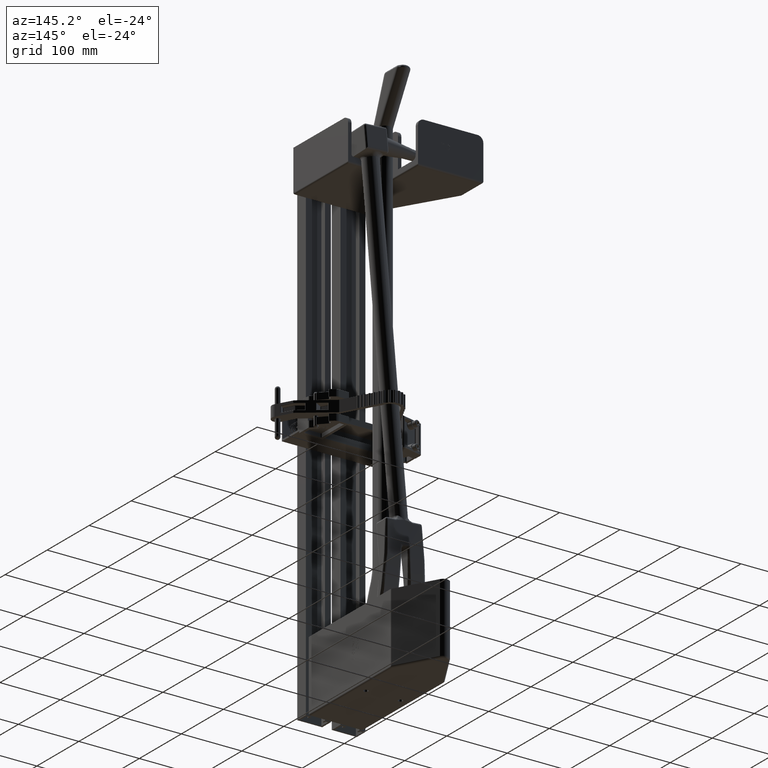
[diagram: clean part render]
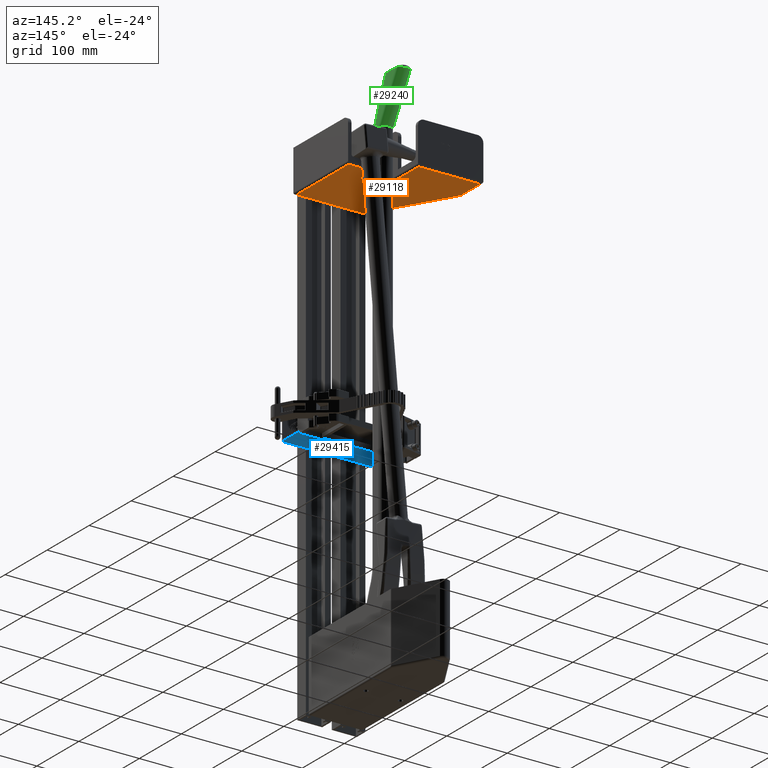
[diagram: same view with three faces highlighted in distinct colors, each labeled with its STEP entity id]
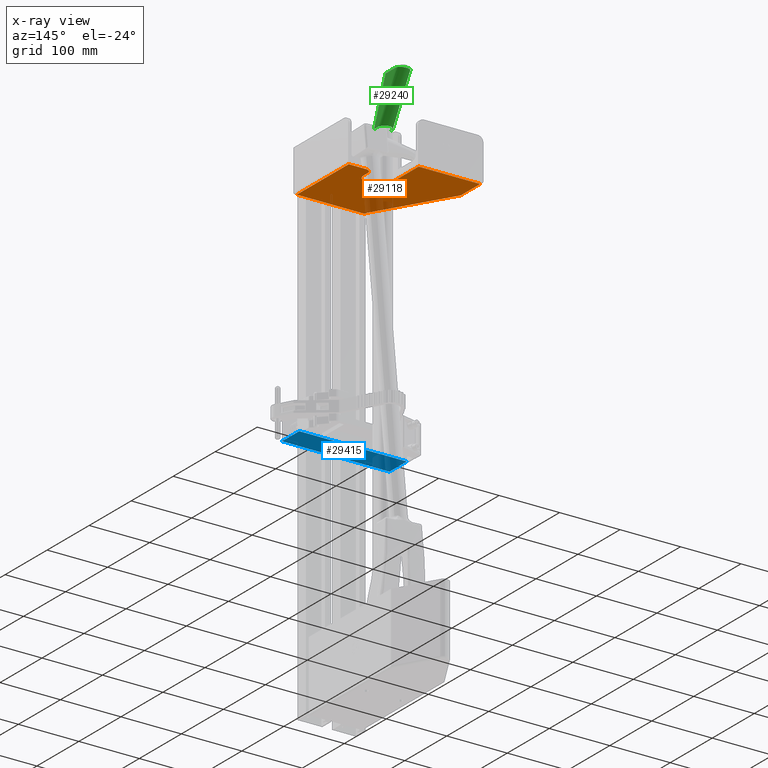
[diagram: x-ray of the same camera — body ghosted, the three highlighted faces saturated]
A machine part, auxiliary view with three faces highlighted in distinct colors.
The next image is the same camera in x-ray (body ghosted, the three faces saturated) — at least one of them is partly hidden behind the body in this view.
Their STEP definitions:

[orange] entity #29118 — the highlighted planar face has unit normal (0, 0, 1).
#10278 = AXIS2_PLACEMENT_3D ( 'NONE', #16723, #16744, #16745 ) ;
#10283 = AXIS2_PLACEMENT_3D ( 'NONE', #16720, #16724, #16725 ) ;
#10285 = AXIS2_PLACEMENT_3D ( 'NONE', #16716, #16729, #16730 ) ;
#14902 = LINE ( 'NONE', #16721, #14918 ) ;
#14909 = LINE ( 'NONE', #16708, #14910 ) ;
#14910 = VECTOR ( 'NONE', #16709, 39.37007874015748100 ) ;
#14913 = VECTOR ( 'NONE', #16727, 39.37007874015748100 ) ;
#14914 = LINE ( 'NONE', #16714, #14915 ) ;
#14915 = VECTOR ( 'NONE', #16715, 39.37007874015748100 ) ;
#14916 = LINE ( 'NONE', #16731, #14919 ) ;
#14917 = LINE ( 'NONE', #16726, #14913 ) ;
#14918 = VECTOR ( 'NONE', #16722, 39.37007874015748100 ) ;
#14919 = VECTOR ( 'NONE', #16732, 39.37007874015748100 ) ;
#14920 = CIRCLE ( 'NONE', #10283, 0.6250000000000000000 ) ;
#14922 = CIRCLE ( 'NONE', #10285, 0.3750000000000001100 ) ;
#14923 = LINE ( 'NONE', #16733, #14924 ) ;
#14924 = VECTOR ( 'NONE', #16734, 39.37007874015748100 ) ;
#14925 = LINE ( 'NONE', #16735, #14926 ) ;
#14926 = VECTOR ( 'NONE', #16736, 39.37007874015748100 ) ;
#14927 = LINE ( 'NONE', #16737, #14928 ) ;
#14928 = VECTOR ( 'NONE', #16738, 39.37007874015748100 ) ;
#14929 = LINE ( 'NONE', #16739, #14930 ) ;
#14930 = VECTOR ( 'NONE', #16740, 39.37007874015748100 ) ;
#14931 = LINE ( 'NONE', #16741, #14932 ) ;
#14932 = VECTOR ( 'NONE', #16742, 39.37007874015748100 ) ;
#14934 = CIRCLE ( 'NONE', #10278, 0.3749999999999999400 ) ;
#16708 = CARTESIAN_POINT ( 'NONE',  ( 0.7187500000000001100, 7.000000000000000000, 0.0000000000000000000 ) ) ;
#16709 = DIRECTION ( 'NONE',  ( -4.966996352116843800E-017, 1.000000000000000000, -0.0000000000000000000 ) ) ;
#16714 = CARTESIAN_POINT ( 'NONE',  ( 2.218750000000000000, 7.000000000000000000, 0.0000000000000000000 ) ) ;
#16715 = DIRECTION ( 'NONE',  ( 5.330435109588807600E-017, -1.000000000000000000, -0.0000000000000000000 ) ) ;
#16716 = CARTESIAN_POINT ( 'NONE',  ( 1.093750000000000000, 4.624999999999999100, 0.0000000000000000000 ) ) ;
#16720 = CARTESIAN_POINT ( 'NONE',  ( 0.09374999999999998600, 4.250000000000000000, 0.0000000000000000000 ) ) ;
#16721 = CARTESIAN_POINT ( 'NONE',  ( -2.343749999999992000, 4.999999999999999100, 0.0000000000000000000 ) ) ;
#16722 = DIRECTION ( 'NONE',  ( 1.000000000000000000, -0.0000000000000000000, -0.0000000000000000000 ) ) ;
#16723 = CARTESIAN_POINT ( 'NONE',  ( -0.6562499999999998900, 4.000000000000000000, 0.0000000000000000000 ) ) ;
#16724 = DIRECTION ( 'NONE',  ( 0.0000000000000000000, -0.0000000000000000000, 1.000000000000000000 ) ) ;
#16725 = DIRECTION ( 'NONE',  ( 1.000000000000000000, 0.0000000000000000000, 0.0000000000000000000 ) ) ;
#16726 = CARTESIAN_POINT ( 'NONE',  ( -2.343749999999992000, 3.625000000000000400, 0.0000000000000000000 ) ) ;
#16727 = DIRECTION ( 'NONE',  ( 1.000000000000000000, -0.0000000000000000000, -0.0000000000000000000 ) ) ;
#16729 = DIRECTION ( 'NONE',  ( -0.0000000000000000000, 0.0000000000000000000, -1.000000000000000000 ) ) ;
#16730 = DIRECTION ( 'NONE',  ( 1.000000000000000000, -1.456985596620940000E-015, 0.0000000000000000000 ) ) ;
#16731 = CARTESIAN_POINT ( 'NONE',  ( -2.343749999999992000, 0.1250000000000004400, 0.0000000000000000000 ) ) ;
#16732 = DIRECTION ( 'NONE',  ( -1.000000000000000000, -0.0000000000000000000, -0.0000000000000000000 ) ) ;
#16733 = CARTESIAN_POINT ( 'NONE',  ( -2.218749999999992500, 7.000000000000000000, 0.0000000000000000000 ) ) ;
#16734 = DIRECTION ( 'NONE',  ( 1.115039997413985000E-015, 1.000000000000000000, -0.0000000000000000000 ) ) ;
#16735 = CARTESIAN_POINT ( 'NONE',  ( -5.193033217995651500, 5.318235246461113300, 0.0000000000000000000 ) ) ;
#16736 = DIRECTION ( 'NONE',  ( -0.5083030259751671900, 0.8611782822299273200, -0.0000000000000000000 ) ) ;
#16737 = CARTESIAN_POINT ( 'NONE',  ( -5.031249999999999100, 7.000000000000000000, 0.0000000000000000000 ) ) ;
#16738 = DIRECTION ( 'NONE',  ( -0.0000000000000000000, 1.000000000000000000, -0.0000000000000000000 ) ) ;
#16739 = CARTESIAN_POINT ( 'NONE',  ( -2.343749999999992000, 6.874999999999999100, 0.0000000000000000000 ) ) ;
#16740 = DIRECTION ( 'NONE',  ( 1.000000000000000000, -0.0000000000000000000, -0.0000000000000000000 ) ) ;
#16741 = CARTESIAN_POINT ( 'NONE',  ( -1.031250000000000000, 7.000000000000000000, 0.0000000000000000000 ) ) ;
#16742 = DIRECTION ( 'NONE',  ( -0.0000000000000000000, -1.000000000000000000, -0.0000000000000000000 ) ) ;
#16744 = DIRECTION ( 'NONE',  ( 0.0000000000000000000, -0.0000000000000000000, 1.000000000000000000 ) ) ;
#16745 = DIRECTION ( 'NONE',  ( 1.000000000000000000, 0.0000000000000000000, 0.0000000000000000000 ) ) ;
#24397 = ORIENTED_EDGE ( 'NONE', *, *, #36079, .T. ) ;
#24400 = ORIENTED_EDGE ( 'NONE', *, *, #36093, .T. ) ;
#24403 = ORIENTED_EDGE ( 'NONE', *, *, #36064, .T. ) ;
#24404 = ORIENTED_EDGE ( 'NONE', *, *, #36091, .T. ) ;
#24406 = ORIENTED_EDGE ( 'NONE', *, *, #36069, .T. ) ;
#24407 = ORIENTED_EDGE ( 'NONE', *, *, #36088, .T. ) ;
#24409 = ORIENTED_EDGE ( 'NONE', *, *, #36076, .T. ) ;
#24410 = ORIENTED_EDGE ( 'NONE', *, *, #36057, .T. ) ;
#24411 = ORIENTED_EDGE ( 'NONE', *, *, #36072, .T. ) ;
#24413 = ORIENTED_EDGE ( 'NONE', *, *, #36074, .T. ) ;
#24415 = ORIENTED_EDGE ( 'NONE', *, *, #36086, .T. ) ;
#24418 = ORIENTED_EDGE ( 'NONE', *, *, #36084, .T. ) ;
#24420 = ORIENTED_EDGE ( 'NONE', *, *, #36081, .T. ) ;
#24712 = EDGE_LOOP ( 'NONE', ( #24413, #24411, #24410, #24409, #24406, #24403, #24397, #24420, #24418, #24415, #24407, #24404, #24400 ) ) ;
#27751 = VERTEX_POINT ( 'NONE', #49166 ) ;
#27752 = VERTEX_POINT ( 'NONE', #49167 ) ;
#27754 = VERTEX_POINT ( 'NONE', #49169 ) ;
#27756 = VERTEX_POINT ( 'NONE', #49171 ) ;
#27758 = VERTEX_POINT ( 'NONE', #49173 ) ;
#27760 = VERTEX_POINT ( 'NONE', #49175 ) ;
#27762 = VERTEX_POINT ( 'NONE', #49177 ) ;
#27763 = VERTEX_POINT ( 'NONE', #49178 ) ;
#27764 = VERTEX_POINT ( 'NONE', #49179 ) ;
#27765 = VERTEX_POINT ( 'NONE', #49180 ) ;
#27767 = VERTEX_POINT ( 'NONE', #49182 ) ;
#27768 = VERTEX_POINT ( 'NONE', #49183 ) ;
#27769 = VERTEX_POINT ( 'NONE', #49184 ) ;
#29118 = ADVANCED_FACE ( 'NONE', ( #51096 ), #60718, .F. ) ;
#36057 = EDGE_CURVE ( 'NONE', #27754, #27756, #14909, .T. ) ;
#36064 = EDGE_CURVE ( 'NONE', #27760, #27762, #14914, .T. ) ;
#36069 = EDGE_CURVE ( 'NONE', #27758, #27760, #14902, .T. ) ;
#36072 = EDGE_CURVE ( 'NONE', #27752, #27754, #14920, .T. ) ;
#36074 = EDGE_CURVE ( 'NONE', #27751, #27752, #14917, .T. ) ;
#36076 = EDGE_CURVE ( 'NONE', #27756, #27758, #14922, .T. ) ;
#36079 = EDGE_CURVE ( 'NONE', #27762, #27763, #14916, .T. ) ;
#36081 = EDGE_CURVE ( 'NONE', #27763, #27764, #14923, .T. ) ;
#36084 = EDGE_CURVE ( 'NONE', #27764, #27765, #14925, .T. ) ;
#36086 = EDGE_CURVE ( 'NONE', #27765, #27767, #14927, .T. ) ;
#36088 = EDGE_CURVE ( 'NONE', #27767, #27768, #14929, .T. ) ;
#36091 = EDGE_CURVE ( 'NONE', #27768, #27769, #14931, .T. ) ;
#36093 = EDGE_CURVE ( 'NONE', #27769, #27751, #14934, .T. ) ;
#37518 = AXIS2_PLACEMENT_3D ( 'NONE', #60712, #60724, #60725 ) ;
#49166 = CARTESIAN_POINT ( 'NONE',  ( -0.6562499999999998900, 3.625000000000000400, 0.0000000000000000000 ) ) ;
#49167 = CARTESIAN_POINT ( 'NONE',  ( 0.09374999999999998600, 3.625000000000000400, 0.0000000000000000000 ) ) ;
#49169 = CARTESIAN_POINT ( 'NONE',  ( 0.7187500000000000000, 4.250000000000000000, 0.0000000000000000000 ) ) ;
#49171 = CARTESIAN_POINT ( 'NONE',  ( 0.7187500000000000000, 4.624999999999999100, 0.0000000000000000000 ) ) ;
#49173 = CARTESIAN_POINT ( 'NONE',  ( 1.093749999999999800, 4.999999999999999100, 0.0000000000000000000 ) ) ;
#49175 = CARTESIAN_POINT ( 'NONE',  ( 2.218750000000000000, 4.999999999999999100, 0.0000000000000000000 ) ) ;
#49177 = CARTESIAN_POINT ( 'NONE',  ( 2.218750000000000000, 0.1250000000000000000, 0.0000000000000000000 ) ) ;
#49178 = CARTESIAN_POINT ( 'NONE',  ( -2.218750000000000000, 0.1250000000000000000, 0.0000000000000000000 ) ) ;
#49179 = CARTESIAN_POINT ( 'NONE',  ( -2.218750000000000000, 0.2791385233502580700, 0.0000000000000000000 ) ) ;
#49180 = CARTESIAN_POINT ( 'NONE',  ( -5.031249999999999100, 5.044138523350255800, 0.0000000000000000000 ) ) ;
#49182 = CARTESIAN_POINT ( 'NONE',  ( -5.031249999999999100, 6.874999999999999100, 0.0000000000000000000 ) ) ;
#49183 = CARTESIAN_POINT ( 'NONE',  ( -1.031250000000000000, 6.874999999999999100, 0.0000000000000000000 ) ) ;
#49184 = CARTESIAN_POINT ( 'NONE',  ( -1.031250000000000000, 4.000000000000000000, 0.0000000000000000000 ) ) ;
#51096 = FACE_OUTER_BOUND ( 'NONE', #24712, .T. ) ;
#60712 = CARTESIAN_POINT ( 'NONE',  ( -2.343749999999992000, 7.000000000000000000, 0.0000000000000000000 ) ) ;
#60718 = PLANE ( 'NONE',  #37518 ) ;
#60724 = DIRECTION ( 'NONE',  ( 0.0000000000000000000, -0.0000000000000000000, 1.000000000000000000 ) ) ;
#60725 = DIRECTION ( 'NONE',  ( 1.000000000000000000, 0.0000000000000000000, -0.0000000000000000000 ) ) ;

[blue] entity #29415 — the highlighted planar face has unit normal (0, 0, 1).
#1462 = CARTESIAN_POINT ( 'NONE',  ( 0.8125000000000000000, 0.0000000000000000000, 3.500000000000000000 ) ) ;
#1472 = PLANE ( 'NONE',  #37761 ) ;
#1479 = DIRECTION ( 'NONE',  ( -1.000000000000000000, 0.0000000000000000000, 0.0000000000000000000 ) ) ;
#1481 = DIRECTION ( 'NONE',  ( 0.0000000000000000000, 0.0000000000000000000, 1.000000000000000000 ) ) ;
#3078 = FACE_OUTER_BOUND ( 'NONE', #26370, .T. ) ;
#6211 = CARTESIAN_POINT ( 'NONE',  ( 0.8125000000000000000, 0.0000000000000000000, 3.500000000000000000 ) ) ;
#6221 = DIRECTION ( 'NONE',  ( 0.0000000000000000000, 1.000000000000000000, 0.0000000000000000000 ) ) ;
#6244 = CARTESIAN_POINT ( 'NONE',  ( 0.8125000000000000000, 0.0000000000000000000, -3.500000000000000000 ) ) ;
#6249 = CARTESIAN_POINT ( 'NONE',  ( 0.8125000000000000000, 1.625000000000000200, 3.500000000000000000 ) ) ;
#6250 = CARTESIAN_POINT ( 'NONE',  ( 0.8125000000000000000, 0.0000000000000000000, 3.500000000000000000 ) ) ;
#6251 = DIRECTION ( 'NONE',  ( -0.0000000000000000000, -0.0000000000000000000, -1.000000000000000000 ) ) ;
#6252 = DIRECTION ( 'NONE',  ( 0.0000000000000000000, 1.000000000000000000, 0.0000000000000000000 ) ) ;
#6253 = DIRECTION ( 'NONE',  ( -0.0000000000000000000, -0.0000000000000000000, -1.000000000000000000 ) ) ;
#8636 = VECTOR ( 'NONE', #6252, 39.37007874015748100 ) ;
#8649 = LINE ( 'NONE', #6244, #8636 ) ;
#8653 = VECTOR ( 'NONE', #6253, 39.37007874015748100 ) ;
#8655 = LINE ( 'NONE', #6250, #8653 ) ;
#25171 = VERTEX_POINT ( 'NONE', #42666 ) ;
#25172 = VERTEX_POINT ( 'NONE', #42668 ) ;
#25174 = VERTEX_POINT ( 'NONE', #42672 ) ;
#25185 = VERTEX_POINT ( 'NONE', #42692 ) ;
#26370 = EDGE_LOOP ( 'NONE', ( #34242, #34241, #34240, #34218 ) ) ;
#29415 = ADVANCED_FACE ( 'NONE', ( #3078 ), #1472, .F. ) ;
#34218 = ORIENTED_EDGE ( 'NONE', *, *, #72522, .T. ) ;
#34240 = ORIENTED_EDGE ( 'NONE', *, *, #72472, .F. ) ;
#34241 = ORIENTED_EDGE ( 'NONE', *, *, #72515, .F. ) ;
#34242 = ORIENTED_EDGE ( 'NONE', *, *, #72519, .T. ) ;
#37761 = AXIS2_PLACEMENT_3D ( 'NONE', #1462, #1479, #1481 ) ;
#42666 = CARTESIAN_POINT ( 'NONE',  ( 0.8125000000000000000, 1.625000000000000200, 3.500000000000000000 ) ) ;
#42668 = CARTESIAN_POINT ( 'NONE',  ( 0.8125000000000000000, 0.0000000000000000000, 3.500000000000000000 ) ) ;
#42672 = CARTESIAN_POINT ( 'NONE',  ( 0.8125000000000000000, 1.625000000000000200, -3.500000000000000000 ) ) ;
#42692 = CARTESIAN_POINT ( 'NONE',  ( 0.8125000000000000000, 0.0000000000000000000, -3.500000000000000000 ) ) ;
#60041 = LINE ( 'NONE', #6211, #60043 ) ;
#60043 = VECTOR ( 'NONE', #6221, 39.37007874015748100 ) ;
#60050 = VECTOR ( 'NONE', #6251, 39.37007874015748100 ) ;
#60069 = LINE ( 'NONE', #6249, #60050 ) ;
#72472 = EDGE_CURVE ( 'NONE', #25172, #25171, #60041, .T. ) ;
#72515 = EDGE_CURVE ( 'NONE', #25171, #25174, #60069, .T. ) ;
#72519 = EDGE_CURVE ( 'NONE', #25185, #25174, #8649, .T. ) ;
#72522 = EDGE_CURVE ( 'NONE', #25172, #25185, #8655, .T. ) ;

[green] entity #29240 — the highlighted face is a freeform B-spline surface patch.
#21356 = B_SPLINE_CURVE_WITH_KNOTS ( 'NONE', 3,
 ( #52438, #52442, #52443, #52444, #52445, #52446, #52447 ),
 .UNSPECIFIED., .F., .F.,
 ( 4, 1, 1, 1, 4 ),
 ( 0.0000000000000000000, 0.2499999999427076900, 0.4999999998854153800, 0.7499999998281230400, 1.000000000000000000 ),
 .UNSPECIFIED. ) ;
#21367 = B_SPLINE_CURVE_WITH_KNOTS ( 'NONE', 3,
 ( #52498, #52574, #52575, #52576, #52577, #52578, #52579, #52580, #52581, #52582, #52583, #52584, #52585, #52586, #52587 ),
 .UNSPECIFIED., .F., .F.,
 ( 4, 1, 1, 1, 1, 1, 1, 1, 1, 1, 1, 1, 4 ),
 ( 0.0000000000000000000, 0.06249999989806832900, 0.1249999999048637800, 0.2499999999184547000, 0.3749999999320454700, 0.4374999999388410900, 0.4999999999456363800, 0.5624999999524320500, 0.6249999999592272800, 0.7499999999728181900, 0.8749999999864090900, 0.9374999999932043200, 1.000000000000000000 ),
 .UNSPECIFIED. ) ;
#21394 = B_SPLINE_CURVE_WITH_KNOTS ( 'NONE', 3,
 ( #52769, #52817, #52818, #52819, #52820, #52821, #52822 ),
 .UNSPECIFIED., .F., .F.,
 ( 4, 1, 1, 1, 4 ),
 ( -5.895949156675683900E-008, 0.006184576456087464500, 0.01236921187166649600, 0.01855384728724552800, 0.02473848270282455800 ),
 .UNSPECIFIED. ) ;
#21397 = B_SPLINE_CURVE_WITH_KNOTS ( 'NONE', 3,
 ( #52816, #52824, #52825, #52826, #52827, #52828, #52829, #52830, #52831, #52832 ),
 .UNSPECIFIED., .F., .F.,
 ( 4, 2, 2, 2, 4 ),
 ( 0.0000000000000000000, 0.001407890664867595800, 0.002111835997301419200, 0.002463808663518331000, 0.002815781329735242900 ),
 .UNSPECIFIED. ) ;
#21403 = B_SPLINE_CURVE_WITH_KNOTS ( 'NONE', 3,
 ( #52833, #52838, #52839, #52840, #52841, #59991, #59993, #59994, #59996, #59998, #60000, #60002, #60004, #60005, #60007, #60009, #60011, #60013, #60015, #60016, #60018, #60020, #60022, #60024, #60026, #60027, #60029, #60031, #60033, #60035, #60037, #60038, #60040, #60042, #60044, #60046, #60048, #60049, #60051, #60052, #60054, #60055, #60057, #60058, #60060, #60062, #60064 ),
 .UNSPECIFIED., .F., .F.,
 ( 4, 2, 1, 2, 2, 2, 2, 2, 2, 2, 2, 2, 2, 2, 2, 2, 2, 2, 2, 2, 2, 2, 2, 4 ),
 ( -5.999999998455704900E-008, 0.0002334328426369140400, 0.0004669256852738126100, 0.0009339113705475471200, 0.001867882741095006300, 0.002801854111642465100, 0.003735825482189924200, 0.005603768223284779800, 0.006537739593832185600, 0.007471710964379592100, 0.009339653705474347200, 0.01027362507602173400, 0.01120759644656912000, 0.01307553918766390900, 0.01400951055821129900, 0.01494348192875868600, 0.01681142466985345600, 0.01867936741094825300, 0.02054731015204304400, 0.02241525289313783800, 0.02428319563423263200, 0.02615113837532742600, 0.02801908111642222000, 0.02988702385751701400 ),
 .UNSPECIFIED. ) ;
#23070 = ORIENTED_EDGE ( 'NONE', *, *, #28865, .T. ) ;
#23071 = ORIENTED_EDGE ( 'NONE', *, *, #28864, .T. ) ;
#23072 = ORIENTED_EDGE ( 'NONE', *, *, #28851, .T. ) ;
#23073 = ORIENTED_EDGE ( 'NONE', *, *, #28831, .T. ) ;
#23074 = ORIENTED_EDGE ( 'NONE', *, *, #28852, .T. ) ;
#23075 = ORIENTED_EDGE ( 'NONE', *, *, #28860, .T. ) ;
#23076 = ORIENTED_EDGE ( 'NONE', *, *, #28867, .T. ) ;
#25227 = VERTEX_POINT ( 'NONE', #42776 ) ;
#25228 = VERTEX_POINT ( 'NONE', #42778 ) ;
#25238 = VERTEX_POINT ( 'NONE', #42798 ) ;
#25243 = VERTEX_POINT ( 'NONE', #42808 ) ;
#25244 = VERTEX_POINT ( 'NONE', #42810 ) ;
#25245 = VERTEX_POINT ( 'NONE', #42812 ) ;
#25246 = VERTEX_POINT ( 'NONE', #42813 ) ;
#28831 = EDGE_CURVE ( 'NONE', #25228, #25227, #21356, .T. ) ;
#28851 = EDGE_CURVE ( 'NONE', #25245, #25228, #50714, .T. ) ;
#28852 = EDGE_CURVE ( 'NONE', #25227, #25238, #21367, .T. ) ;
#28860 = EDGE_CURVE ( 'NONE', #25238, #25246, #50724, .T. ) ;
#28864 = EDGE_CURVE ( 'NONE', #25244, #25245, #21394, .T. ) ;
#28865 = EDGE_CURVE ( 'NONE', #25243, #25244, #21397, .T. ) ;
#28867 = EDGE_CURVE ( 'NONE', #25246, #25243, #21403, .T. ) ;
#29240 = ADVANCED_FACE ( 'NONE', ( #51271 ), #44190, .T. ) ;
#33687 = EDGE_LOOP ( 'NONE', ( #23070, #23071, #23072, #23073, #23074, #23075, #23076 ) ) ;
#42776 = CARTESIAN_POINT ( 'NONE',  ( -2.887444690265486900, 0.8668746138053105000, 31.99999999999999600 ) ) ;
#42778 = CARTESIAN_POINT ( 'NONE',  ( -2.887444690265486900, 1.241874613805310500, 31.99999999999999600 ) ) ;
#42798 = CARTESIAN_POINT ( 'NONE',  ( -2.012444690265487300, 0.8509975320812375200, 31.99999999999999600 ) ) ;
#42808 = CARTESIAN_POINT ( 'NONE',  ( -2.870414704285048300, -0.9244601998897126200, 34.85480153938431200 ) ) ;
#42810 = CARTESIAN_POINT ( 'NONE',  ( -2.887444690265486900, -0.8167968909201640500, 34.87499999999999300 ) ) ;
#42812 = CARTESIAN_POINT ( 'NONE',  ( -2.887444690265486000, 0.1571614422418882200, 34.87499999999999300 ) ) ;
#42813 = CARTESIAN_POINT ( 'NONE',  ( -2.030109892429473800, -0.8178567498218911600, 34.87568635420430500 ) ) ;
#44190 = B_SPLINE_SURFACE_WITH_KNOTS ( 'NONE', 3, 3, ( 
 ( #64315, #64317, #64316, #64322 ),
 ( #64323, #64324, #64325, #64326 ),
 ( #64327, #64328, #64329, #64330 ),
 ( #64331, #64332, #64333, #64334 ),
 ( #64335, #64336, #64337, #64338 ),
 ( #64339, #64340, #64341, #64342 ),
 ( #64343, #64344, #64345, #64346 ),
 ( #64347, #64348, #64349, #64350 ),
 ( #64351, #64352, #64353, #64354 ),
 ( #64355, #64356, #64357, #64358 ),
 ( #64359, #64360, #64361, #64362 ),
 ( #64363, #64364, #64365, #64366 ),
 ( #64367, #64368, #64369, #64370 ),
 ( #64371, #64372, #64373, #64374 ),
 ( #64375, #64376, #64377, #64378 ),
 ( #64379, #64380, #64381, #64382 ),
 ( #64383, #64384, #64385, #64386 ),
 ( #64387, #64388, #64389, #64390 ),
 ( #64391, #64392, #64393, #64394 ),
 ( #64395, #64396, #64397, #64398 ) ),
 .UNSPECIFIED., .F., .F., .F.,
 ( 4, 1, 1, 1, 2, 1, 1, 1, 1, 1, 1, 1, 1, 1, 1, 1, 4 ),
 ( 4, 4 ),
 ( 0.0000000000000000000, 0.08044414063546193000, 0.1608882812709238600, 0.2413324219063857900, 0.3217765625418477200, 0.3641655273829822500, 0.4065544922241167700, 0.4913324219063858200, 0.5761103515886547600, 0.6184993164297893900, 0.6608882812709238100, 0.7032772461120584400, 0.7456662109531928500, 0.8304441406354619000, 0.9152220703177308400, 0.9576110351588653600, 1.000000000000000000 ),
 ( 0.0000000000000000000, 0.9643134907765104100 ),
 .UNSPECIFIED. ) ;
#50705 = VECTOR ( 'NONE', #52571, 39.37007874015748900 ) ;
#50714 = LINE ( 'NONE', #52570, #50705 ) ;
#50722 = VECTOR ( 'NONE', #52714, 39.37007874015748900 ) ;
#50724 = LINE ( 'NONE', #52713, #50722 ) ;
#51271 = FACE_OUTER_BOUND ( 'NONE', #33687, .T. ) ;
#52438 = CARTESIAN_POINT ( 'NONE',  ( -2.887444690265486900, 1.241874613805310500, 31.99999999999999600 ) ) ;
#52442 = CARTESIAN_POINT ( 'NONE',  ( -2.887444690265486900, 1.195377397594960400, 31.99999999999999600 ) ) ;
#52443 = CARTESIAN_POINT ( 'NONE',  ( -2.887444690265488200, 1.136205090966162500, 31.99999999999992900 ) ) ;
#52444 = CARTESIAN_POINT ( 'NONE',  ( -2.887444690265484700, 1.054374613805310700, 32.00000000000006400 ) ) ;
#52445 = CARTESIAN_POINT ( 'NONE',  ( -2.887444690265487300, 0.9725441366444582700, 31.99999999999994700 ) ) ;
#52446 = CARTESIAN_POINT ( 'NONE',  ( -2.887444690265486900, 0.9133718300156606900, 31.99999999999999600 ) ) ;
#52447 = CARTESIAN_POINT ( 'NONE',  ( -2.887444690265486900, 0.8668746138053105000, 31.99999999999999600 ) ) ;
#52498 = CARTESIAN_POINT ( 'NONE',  ( -2.887444690265486900, 0.8668746138053105000, 31.99999999999999600 ) ) ;
#52570 = CARTESIAN_POINT ( 'NONE',  ( -2.887444690265486400, 0.6759373069026551900, 33.49999999999999300 ) ) ;
#52571 = DIRECTION ( 'NONE',  ( -3.407970936061396400E-016, 0.3530024177827918400, -0.9356224094363617700 ) ) ;
#52574 = CARTESIAN_POINT ( 'NONE',  ( -2.887444690265486900, 0.8423735273129900900, 31.99999999999999600 ) ) ;
#52575 = CARTESIAN_POINT ( 'NONE',  ( -2.883298504487879800, 0.7922414701089501900, 31.99999999999998600 ) ) ;
#52576 = CARTESIAN_POINT ( 'NONE',  ( -2.856674891955819800, 0.6909132999334259800, 31.99999999999997500 ) ) ;
#52577 = CARTESIAN_POINT ( 'NONE',  ( -2.785749615959622400, 0.5687370097315983500, 32.00000000000004300 ) ) ;
#52578 = CARTESIAN_POINT ( 'NONE',  ( -2.665398254706135000, 0.4774794186606349800, 31.99999999999998900 ) ) ;
#52579 = CARTESIAN_POINT ( 'NONE',  ( -2.549671415751246300, 0.4375162247102640800, 32.00000000000000700 ) ) ;
#52580 = CARTESIAN_POINT ( 'NONE',  ( -2.457800193701591000, 0.4260123388438751300, 32.00000000000001400 ) ) ;
#52581 = CARTESIAN_POINT ( 'NONE',  ( -2.365572104822360400, 0.4341756992188756100, 31.99999999999991100 ) ) ;
#52582 = CARTESIAN_POINT ( 'NONE',  ( -2.248471640971975400, 0.4699141867529829700, 32.00000000000012800 ) ) ;
#52583 = CARTESIAN_POINT ( 'NONE',  ( -2.124888813851828000, 0.5567455343449654300, 31.99999999999986100 ) ) ;
#52584 = CARTESIAN_POINT ( 'NONE',  ( -2.049577850777483800, 0.6762683334396606400, 32.00000000000002800 ) ) ;
#52585 = CARTESIAN_POINT ( 'NONE',  ( -2.019295727261719800, 0.7765639355902697000, 32.00000000000001400 ) ) ;
#52586 = CARTESIAN_POINT ( 'NONE',  ( -2.013333553613454000, 0.8265125742243651900, 31.99999999999999600 ) ) ;
#52587 = CARTESIAN_POINT ( 'NONE',  ( -2.012444690265487300, 0.8509975320812375200, 31.99999999999999600 ) ) ;
#52713 = CARTESIAN_POINT ( 'NONE',  ( -2.021659117703736600, -0.01950123395938127600, 33.49999999999999300 ) ) ;
#52714 = DIRECTION ( 'NONE',  ( -0.005313002864910237000, -0.5019261879122479700, 0.8648941402787025900 ) ) ;
#52769 = CARTESIAN_POINT ( 'NONE',  ( -2.887444690265486900, -0.8167968909201640500, 34.87499999999999300 ) ) ;
#52816 = CARTESIAN_POINT ( 'NONE',  ( -2.870414704285048300, -0.9244601998897126200, 34.85480153938431200 ) ) ;
#52817 = CARTESIAN_POINT ( 'NONE',  ( -2.887444690265486400, -0.7545862066928019600, 34.87500000000000700 ) ) ;
#52818 = CARTESIAN_POINT ( 'NONE',  ( -2.887444690265488700, -0.6165453875728980100, 34.87499999999999300 ) ) ;
#52819 = CARTESIAN_POINT ( 'NONE',  ( -2.887444690265484200, -0.3298177244247816300, 34.87500000000002800 ) ) ;
#52820 = CARTESIAN_POINT ( 'NONE',  ( -2.887444690265486000, -0.04309006127666716000, 34.87499999999999300 ) ) ;
#52821 = CARTESIAN_POINT ( 'NONE',  ( -2.887444690265486000, 0.09495075784323633900, 34.87500000000000700 ) ) ;
#52822 = CARTESIAN_POINT ( 'NONE',  ( -2.887444690265486000, 0.1571614422418882200, 34.87499999999999300 ) ) ;
#52824 = CARTESIAN_POINT ( 'NONE',  ( -2.876059636314506600, -0.9069271148648384600, 34.85799126161909800 ) ) ;
#52825 = CARTESIAN_POINT ( 'NONE',  ( -2.880301308599632300, -0.8891909244799911500, 34.86128153677108100 ) ) ;
#52826 = CARTESIAN_POINT ( 'NONE',  ( -2.884573150828178900, -0.8622835182713545200, 34.86636398119267700 ) ) ;
#52827 = CARTESIAN_POINT ( 'NONE',  ( -2.885646607570313100, -0.8532629101546207500, 34.86807928229173800 ) ) ;
#52828 = CARTESIAN_POINT ( 'NONE',  ( -2.886723448546435900, -0.8396505390786797000, 34.87066772542954100 ) ) ;
#52829 = CARTESIAN_POINT ( 'NONE',  ( -2.886993474202077500, -0.8350994939830648200, 34.87153308580265300 ) ) ;
#52830 = CARTESIAN_POINT ( 'NONE',  ( -2.887354095677176200, -0.8259694017067350500, 34.87326583424506800 ) ) ;
#52831 = CARTESIAN_POINT ( 'NONE',  ( -2.887444690265486900, -0.8213358517672522100, 34.87414350400941700 ) ) ;
#52832 = CARTESIAN_POINT ( 'NONE',  ( -2.887444690265486900, -0.8167968909201640500, 34.87499999999999300 ) ) ;
#52833 = CARTESIAN_POINT ( 'NONE',  ( -2.030109892429473800, -0.8178567498218911600, 34.87568635420430500 ) ) ;
#52838 = CARTESIAN_POINT ( 'NONE',  ( -2.030110162494593900, -0.8208680474085814400, 34.87511936834567900 ) ) ;
#52839 = CARTESIAN_POINT ( 'NONE',  ( -2.030150677408954200, -0.8239731068475220100, 34.87453308218417900 ) ) ;
#52840 = CARTESIAN_POINT ( 'NONE',  ( -2.030311486819079900, -0.8300670486364488700, 34.87338009793632700 ) ) ;
#52841 = CARTESIAN_POINT ( 'NONE',  ( -2.030672393501613500, -0.8391856560744115300, 34.87165138124559100 ) ) ;
#59991 = CARTESIAN_POINT ( 'NONE',  ( -2.031389384003988500, -0.8482386999448156000, 34.86992917377943300 ) ) ;
#59993 = CARTESIAN_POINT ( 'NONE',  ( -2.033291080524384200, -0.8662606306987529200, 34.86650379811965200 ) ) ;
#59994 = CARTESIAN_POINT ( 'NONE',  ( -2.035182031694798200, -0.8781632263167397100, 34.86424611798701500 ) ) ;
#59996 = CARTESIAN_POINT ( 'NONE',  ( -2.040182186424895200, -0.9017579875064427600, 34.85982728182570900 ) ) ;
#59998 = CARTESIAN_POINT ( 'NONE',  ( -2.043289588799298300, -0.9134505311607179500, 34.85766634132988200 ) ) ;
#60000 = CARTESIAN_POINT ( 'NONE',  ( -2.050727147737462900, -0.9366218067734939400, 34.85342740956178900 ) ) ;
#60002 = CARTESIAN_POINT ( 'NONE',  ( -2.055087699069771300, -0.9481605878312660000, 34.85134544647277700 ) ) ;
#60004 = CARTESIAN_POINT ( 'NONE',  ( -2.069718806862182800, -0.9817529368068114200, 34.84540009574715900 ) ) ;
#60005 = CARTESIAN_POINT ( 'NONE',  ( -2.081542427516557500, -1.002954784703012200, 34.84179424858361100 ) ) ;
#60007 = CARTESIAN_POINT ( 'NONE',  ( -2.102193804958368200, -1.033068293929892700, 34.83684033116023900 ) ) ;
#60009 = CARTESIAN_POINT ( 'NONE',  ( -2.109566536408079800, -1.042823582056763100, 34.83526946959086200 ) ) ;
#60011 = CARTESIAN_POINT ( 'NONE',  ( -2.125293501393582800, -1.061766190869330800, 34.83228462050277600 ) ) ;
#60013 = CARTESIAN_POINT ( 'NONE',  ( -2.133630547629483200, -1.070923277237183500, 34.83087558174558800 ) ) ;
#60015 = CARTESIAN_POINT ( 'NONE',  ( -2.159598952164450300, -1.097028915499285200, 34.82694071041314000 ) ) ;
#60016 = CARTESIAN_POINT ( 'NONE',  ( -2.178327147034647500, -1.112802759909546500, 34.82467145539247600 ) ) ;
#60018 = CARTESIAN_POINT ( 'NONE',  ( -2.208465076154219700, -1.134099005052083200, 34.82171210183611300 ) ) ;
#60020 = CARTESIAN_POINT ( 'NONE',  ( -2.218895309089148300, -1.140824948286362600, 34.82079719836000500 ) ) ;
#60022 = CARTESIAN_POINT ( 'NONE',  ( -2.240249846847572000, -1.153350518598016800, 34.81912103251120500 ) ) ;
#60024 = CARTESIAN_POINT ( 'NONE',  ( -2.251132707654469400, -1.159131262470329800, 34.81836204694668900 ) ) ;
#60026 = CARTESIAN_POINT ( 'NONE',  ( -2.284377779771460400, -1.175072319394980100, 34.81629429953758900 ) ) ;
#60027 = CARTESIAN_POINT ( 'NONE',  ( -2.307333831440993700, -1.183836993198845300, 34.81518848236007800 ) ) ;
#60029 = CARTESIAN_POINT ( 'NONE',  ( -2.342957576697012100, -1.194183579127356300, 34.81390160789921900 ) ) ;
#60031 = CARTESIAN_POINT ( 'NONE',  ( -2.355056468585174500, -1.197166713845236000, 34.81353450867276000 ) ) ;
#60033 = CARTESIAN_POINT ( 'NONE',  ( -2.379370636714059500, -1.202115971731055400, 34.81292651044819300 ) ) ;
#60035 = CARTESIAN_POINT ( 'NONE',  ( -2.391616246479212100, -1.204092893913683700, 34.81268421428443100 ) ) ;
#60037 = CARTESIAN_POINT ( 'NONE',  ( -2.428618729421812400, -1.208529259695119400, 34.81213558166018600 ) ) ;
#60038 = CARTESIAN_POINT ( 'NONE',  ( -2.453349110851530400, -1.209455647181214300, 34.81201083400934900 ) ) ;
#60040 = CARTESIAN_POINT ( 'NONE',  ( -2.502427540829849800, -1.207349543973174700, 34.81222348294517100 ) ) ;
#60042 = CARTESIAN_POINT ( 'NONE',  ( -2.526857098739698300, -1.204334259177065400, 34.81255804105954600 ) ) ;
#60044 = CARTESIAN_POINT ( 'NONE',  ( -2.575489101849170600, -1.194242486858851000, 34.81372646016654200 ) ) ;
#60046 = CARTESIAN_POINT ( 'NONE',  ( -2.599173215100264200, -1.187264285428511600, 34.81455210757634700 ) ) ;
#60048 = CARTESIAN_POINT ( 'NONE',  ( -2.644936521208876500, -1.169626471631932700, 34.81671733815122100 ) ) ;
#60049 = CARTESIAN_POINT ( 'NONE',  ( -2.667078490486791200, -1.158955921122983800, 34.81805012344934600 ) ) ;
#60051 = CARTESIAN_POINT ( 'NONE',  ( -2.709803847721738500, -1.133726268662944600, 34.82134785149519000 ) ) ;
#60052 = CARTESIAN_POINT ( 'NONE',  ( -2.729830899103334200, -1.119488349917133100, 34.82327350004606400 ) ) ;
#60054 = CARTESIAN_POINT ( 'NONE',  ( -2.767081694319385200, -1.087927465032503000, 34.82775869757134000 ) ) ;
#60055 = CARTESIAN_POINT ( 'NONE',  ( -2.784335385522422900, -1.070588740543880300, 34.83031324241079600 ) ) ;
#60057 = CARTESIAN_POINT ( 'NONE',  ( -2.815857915197980800, -1.032538298203905100, 34.83622556002660500 ) ) ;
#60058 = CARTESIAN_POINT ( 'NONE',  ( -2.829640449702732300, -1.012396991436305300, 34.83950037884726200 ) ) ;
#60060 = CARTESIAN_POINT ( 'NONE',  ( -2.853137427040164800, -0.9700566440832887300, 34.84665502539074600 ) ) ;
#60062 = CARTESIAN_POINT ( 'NONE',  ( -2.862887447476414300, -0.9478397610502621300, 34.85054819172944500 ) ) ;
#60064 = CARTESIAN_POINT ( 'NONE',  ( -2.870414704285048300, -0.9244601998897126200, 34.85480153938431200 ) ) ;
#64315 = CARTESIAN_POINT ( 'NONE',  ( -2.887444690265486900, 1.241874613805310500, 31.99999999999999600 ) ) ;
#64316 = CARTESIAN_POINT ( 'NONE',  ( -2.887444690265486400, 0.5142199738320346600, 33.92862698155301600 ) ) ;
#64317 = CARTESIAN_POINT ( 'NONE',  ( -2.887444690265486400, 0.8780472938186725300, 32.96431349077650500 ) ) ;
#64322 = CARTESIAN_POINT ( 'NONE',  ( -2.887444690265486000, 0.1503926538453969100, 34.89294047232953500 ) ) ;
#64323 = CARTESIAN_POINT ( 'NONE',  ( -2.887444690265486900, 1.195377397594960400, 31.99999999999999600 ) ) ;
#64324 = CARTESIAN_POINT ( 'NONE',  ( -2.887444690265486400, 0.8262795700045436600, 32.96431349077650500 ) ) ;
#64325 = CARTESIAN_POINT ( 'NONE',  ( -2.887444690265486400, 0.4571817424141269600, 33.92862698155301600 ) ) ;
#64326 = CARTESIAN_POINT ( 'NONE',  ( -2.887444690265486000, 0.08808391482371019700, 34.89294047232953500 ) ) ;
#64327 = CARTESIAN_POINT ( 'NONE',  ( -2.887444690265488200, 1.136205090966162500, 31.99999999999992500 ) ) ;
#64328 = CARTESIAN_POINT ( 'NONE',  ( -2.887444690265487300, 0.7406537083869984000, 32.96431349077646200 ) ) ;
#64329 = CARTESIAN_POINT ( 'NONE',  ( -2.887444690265486400, 0.3451023258078342900, 33.92862698155298800 ) ) ;
#64330 = CARTESIAN_POINT ( 'NONE',  ( -2.887444690265486000, -0.05044905677132981200, 34.89294047232952100 ) ) ;
#64331 = CARTESIAN_POINT ( 'NONE',  ( -2.887444690265484700, 1.054374613805310700, 32.00000000000006400 ) ) ;
#64332 = CARTESIAN_POINT ( 'NONE',  ( -2.887444690265484200, 0.5900979718627863400, 32.96431349077655400 ) ) ;
#64333 = CARTESIAN_POINT ( 'NONE',  ( -2.887444690265484200, 0.1258213299202619000, 33.92862698155305200 ) ) ;
#64334 = CARTESIAN_POINT ( 'NONE',  ( -2.887444690265483800, -0.3384553120222624800, 34.89294047232955600 ) ) ;
#64335 = CARTESIAN_POINT ( 'NONE',  ( -2.887444690265487300, 0.9725441366444583800, 31.99999999999995000 ) ) ;
#64336 = CARTESIAN_POINT ( 'NONE',  ( -2.887444690265488200, 0.4395422353385736200, 32.96431349077647600 ) ) ;
#64337 = CARTESIAN_POINT ( 'NONE',  ( -2.887444690265488200, -0.09345966596731093700, 33.92862698155300200 ) ) ;
#64338 = CARTESIAN_POINT ( 'NONE',  ( -2.887444690265488700, -0.6264615672731955700, 34.89294047232952800 ) ) ;
#64339 = CARTESIAN_POINT ( 'NONE',  ( -2.887444690265486900, 0.9133718300156606900, 31.99999999999999600 ) ) ;
#64340 = CARTESIAN_POINT ( 'NONE',  ( -2.887444690265486900, 0.3539163737210286900, 32.96431349077650500 ) ) ;
#64341 = CARTESIAN_POINT ( 'NONE',  ( -2.887444690265486400, -0.2055390825736033400, 33.92862698155301600 ) ) ;
#64342 = CARTESIAN_POINT ( 'NONE',  ( -2.887444690265486400, -0.7649945388682353200, 34.89294047232953500 ) ) ;
#64343 = CARTESIAN_POINT ( 'NONE',  ( -2.887444690265486900, 0.8423735273129900900, 31.99999999999999600 ) ) ;
#64344 = CARTESIAN_POINT ( 'NONE',  ( -2.887444690265486900, 0.2748703398910761800, 32.96431349077650500 ) ) ;
#64345 = CARTESIAN_POINT ( 'NONE',  ( -2.887444690265486900, -0.2926328475308377900, 33.92862698155301600 ) ) ;
#64346 = CARTESIAN_POINT ( 'NONE',  ( -2.887444690265486900, -0.8601360349527517000, 34.89294047232952800 ) ) ;
#64347 = CARTESIAN_POINT ( 'NONE',  ( -2.883298504487879800, 0.7922414701089501900, 31.99999999999998600 ) ) ;
#64348 = CARTESIAN_POINT ( 'NONE',  ( -2.882179233307306600, 0.2204178243605121000, 32.96431349077648300 ) ) ;
#64349 = CARTESIAN_POINT ( 'NONE',  ( -2.881059962126733900, -0.3514058213879259800, 33.92862698155297400 ) ) ;
#64350 = CARTESIAN_POINT ( 'NONE',  ( -2.879940690946161100, -0.9232294671363640000, 34.89294047232946400 ) ) ;
#64351 = CARTESIAN_POINT ( 'NONE',  ( -2.856674891955819800, 0.6909132999334259800, 31.99999999999997500 ) ) ;
#64352 = CARTESIAN_POINT ( 'NONE',  ( -2.851363005452169900, 0.1150342107176314200, 32.96431349077651900 ) ) ;
#64353 = CARTESIAN_POINT ( 'NONE',  ( -2.846051118948520500, -0.4608448784981631400, 33.92862698155307300 ) ) ;
#64354 = CARTESIAN_POINT ( 'NONE',  ( -2.840739232444870600, -1.036723967713957700, 34.89294047232962000 ) ) ;
#64355 = CARTESIAN_POINT ( 'NONE',  ( -2.785749615959622400, 0.5687370097315983500, 32.00000000000004300 ) ) ;
#64356 = CARTESIAN_POINT ( 'NONE',  ( -2.775613088989120400, -0.004534015628508721400, 32.96431349077651200 ) ) ;
#64357 = CARTESIAN_POINT ( 'NONE',  ( -2.765476562018617900, -0.5778050409886158500, 33.92862698155298100 ) ) ;
#64358 = CARTESIAN_POINT ( 'NONE',  ( -2.755340035048115000, -1.151076066348723200, 34.89294047232944300 ) ) ;
#64359 = CARTESIAN_POINT ( 'NONE',  ( -2.665398254706135000, 0.4774794186606350900, 31.99999999999999600 ) ) ;
#64360 = CARTESIAN_POINT ( 'NONE',  ( -2.656741368218875200, -0.08909896332296254900, 32.96431349077651200 ) ) ;
#64361 = CARTESIAN_POINT ( 'NONE',  ( -2.648084481731616300, -0.6556773453065601900, 33.92862698155303000 ) ) ;
#64362 = CARTESIAN_POINT ( 'NONE',  ( -2.639427595244356400, -1.222255727290157700, 34.89294047232954900 ) ) ;
#64363 = CARTESIAN_POINT ( 'NONE',  ( -2.549671415751246300, 0.4375162247102641900, 32.00000000000000700 ) ) ;
#64364 = CARTESIAN_POINT ( 'NONE',  ( -2.545674842173059700, -0.1253357418647861600, 32.96431349077651900 ) ) ;
#64365 = CARTESIAN_POINT ( 'NONE',  ( -2.541678268594873100, -0.6881877084398364500, 33.92862698155303700 ) ) ;
#64366 = CARTESIAN_POINT ( 'NONE',  ( -2.537681695016685600, -1.251039675014886700, 34.89294047232955600 ) ) ;
#64367 = CARTESIAN_POINT ( 'NONE',  ( -2.457800193701590500, 0.4260123388438751300, 32.00000000000001400 ) ) ;
#64368 = CARTESIAN_POINT ( 'NONE',  ( -2.458237003284327500, -0.1354373772220752700, 32.96431349077651900 ) ) ;
#64369 = CARTESIAN_POINT ( 'NONE',  ( -2.458673812867064000, -0.6968870932880256700, 33.92862698155303000 ) ) ;
#64370 = CARTESIAN_POINT ( 'NONE',  ( -2.459110622449800500, -1.258336809353976200, 34.89294047232953500 ) ) ;
#64371 = CARTESIAN_POINT ( 'NONE',  ( -2.365572104822359900, 0.4341756992188756100, 31.99999999999991800 ) ) ;
#64372 = CARTESIAN_POINT ( 'NONE',  ( -2.370557008065409900, -0.1276024960902985300, 32.96431349077646200 ) ) ;
#64373 = CARTESIAN_POINT ( 'NONE',  ( -2.375541911308459500, -0.6893806913994726700, 33.92862698155300200 ) ) ;
#64374 = CARTESIAN_POINT ( 'NONE',  ( -2.380526814551509100, -1.251158886708646700, 34.89294047232955600 ) ) ;
#64375 = CARTESIAN_POINT ( 'NONE',  ( -2.248471640971974900, 0.4699141867529830200, 32.00000000000012800 ) ) ;
#64376 = CARTESIAN_POINT ( 'NONE',  ( -2.258558392130094500, -0.09423244350081426400, 32.96431349077661100 ) ) ;
#64377 = CARTESIAN_POINT ( 'NONE',  ( -2.268645143288214400, -0.6583790737546115800, 33.92862698155310100 ) ) ;
#64378 = CARTESIAN_POINT ( 'NONE',  ( -2.278731894446333500, -1.222525704008408800, 34.89294047232957800 ) ) ;
#64379 = CARTESIAN_POINT ( 'NONE',  ( -2.124888813851828000, 0.5567455343449654300, 31.99999999999985400 ) ) ;
#64380 = CARTESIAN_POINT ( 'NONE',  ( -2.137493920869925300, -0.01267097718525998800, 32.96431349077639800 ) ) ;
#64381 = CARTESIAN_POINT ( 'NONE',  ( -2.150099027888023000, -0.5820874887154854300, 33.92862698155293100 ) ) ;
#64382 = CARTESIAN_POINT ( 'NONE',  ( -2.162704134906120200, -1.151504000245710900, 34.89294047232946400 ) ) ;
#64383 = CARTESIAN_POINT ( 'NONE',  ( -2.049577850777483800, 0.6762683334396606400, 32.00000000000002800 ) ) ;
#64384 = CARTESIAN_POINT ( 'NONE',  ( -2.058768043067323200, 0.1050966904778359600, 32.96431349077654000 ) ) ;
#64385 = CARTESIAN_POINT ( 'NONE',  ( -2.067958235357163100, -0.4660749524839887200, 33.92862698155305200 ) ) ;
#64386 = CARTESIAN_POINT ( 'NONE',  ( -2.077148427647002900, -1.037246595445813400, 34.89294047232956300 ) ) ;
#64387 = CARTESIAN_POINT ( 'NONE',  ( -2.019295727261719800, 0.7765639355902697000, 32.00000000000001400 ) ) ;
#64388 = CARTESIAN_POINT ( 'NONE',  ( -2.025469288061060500, 0.2097796425213240000, 32.96431349077651200 ) ) ;
#64389 = CARTESIAN_POINT ( 'NONE',  ( -2.031642848860401700, -0.3570046505476217600, 33.92862698155301600 ) ) ;
#64390 = CARTESIAN_POINT ( 'NONE',  ( -2.037816409659742000, -0.9237889436165676000, 34.89294047232950600 ) ) ;
#64391 = CARTESIAN_POINT ( 'NONE',  ( -2.013333553613454000, 0.8265125742243651900, 31.99999999999999600 ) ) ;
#64392 = CARTESIAN_POINT ( 'NONE',  ( -2.018971570433143500, 0.2641076971490959900, 32.96431349077650500 ) ) ;
#64393 = CARTESIAN_POINT ( 'NONE',  ( -2.024609587252833400, -0.2982971799261731600, 33.92862698155301600 ) ) ;
#64394 = CARTESIAN_POINT ( 'NONE',  ( -2.030247604072523200, -0.8607020570014423100, 34.89294047232952800 ) ) ;
#64395 = CARTESIAN_POINT ( 'NONE',  ( -2.012444690265487300, 0.8509975320812376300, 31.99999999999999600 ) ) ;
#64396 = CARTESIAN_POINT ( 'NONE',  ( -2.018368421391143900, 0.2913750628830549200, 32.96431349077650500 ) ) ;
#64397 = CARTESIAN_POINT ( 'NONE',  ( -2.024292152516800500, -0.2682474063151277200, 33.92862698155301600 ) ) ;
#64398 = CARTESIAN_POINT ( 'NONE',  ( -2.030215883642458000, -0.8278698755133104800, 34.89294047232953500 ) ) ;